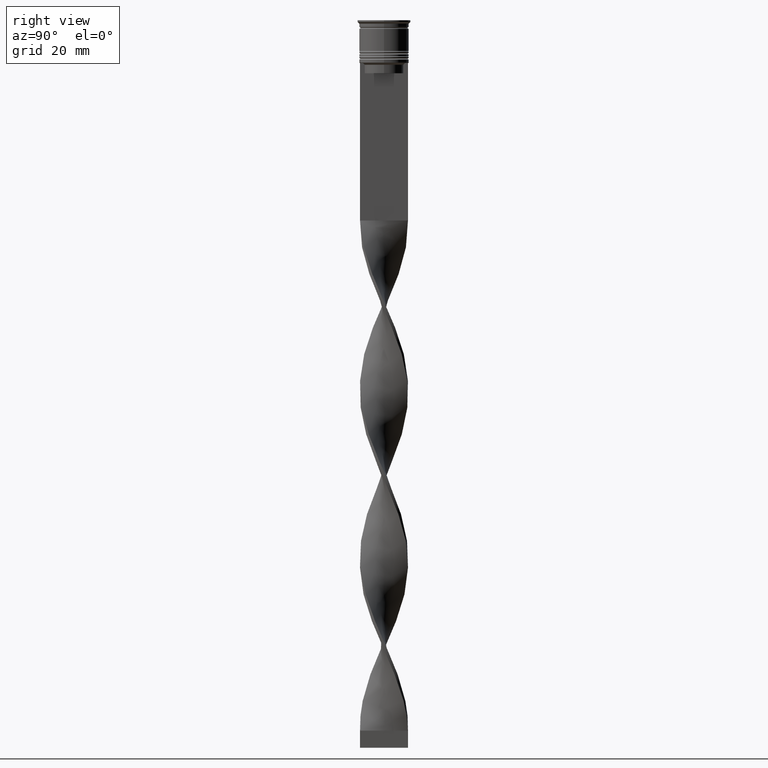
[diagram: clean part render]
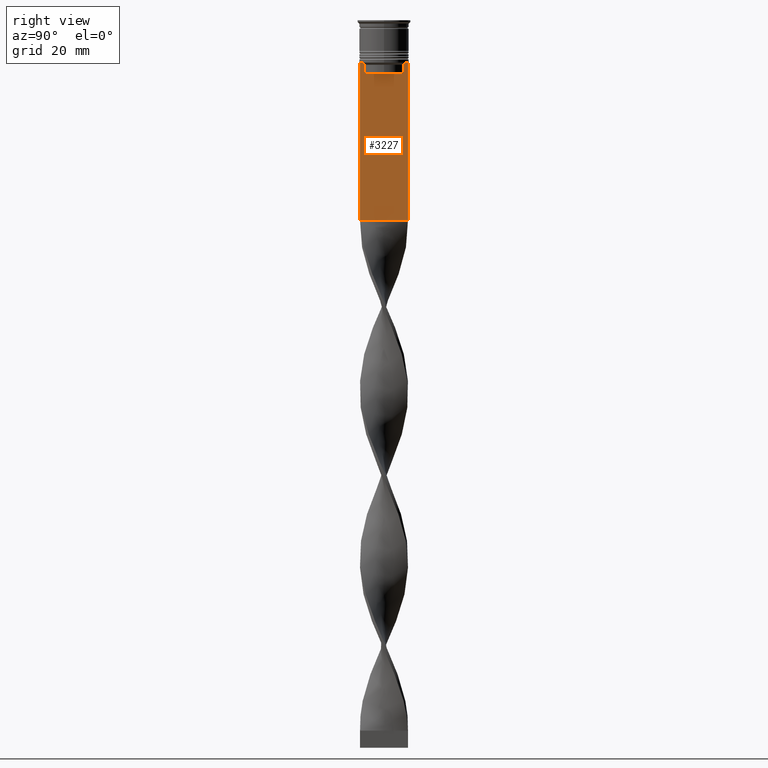
[diagram: same view with one face highlighted and labeled with its STEP entity id]
A machine part, right view. The second image highlights one B-rep face of the part: STEP entity #3227.
In plain terms, the highlighted planar face has unit normal (-1, 0, 0).
Its self-contained STEP definition (entity closure, byte-faithful):
#14 = DIRECTION ( 'NONE',  ( -0.000000000000000000, -0.000000000000000000, 1.000000000000000000 ) ) ;
#47 = CARTESIAN_POINT ( 'NONE',  ( 0.5000000000000000000, 5.627832620112292794, -15.50000000000000000 ) ) ;
#119 = CARTESIAN_POINT ( 'NONE',  ( 0.5000000000000000000, 6.129641098791995368, -12.50000000000000000 ) ) ;
#142 = CARTESIAN_POINT ( 'NONE',  ( 0.5000000000000000000, -5.627832620112292794, -13.00000000000000000 ) ) ;
#204 = CARTESIAN_POINT ( 'NONE',  ( 0.5000000000000000000, 7.000000000000002665, -58.50000000000000000 ) ) ;
#225 = VERTEX_POINT ( 'NONE', #47 ) ;
#311 = VERTEX_POINT ( 'NONE', #142 ) ;
#324 = LINE ( 'NONE', #2915, #474 ) ;
#471 = VECTOR ( 'NONE', #14, 1000.000000000000000 ) ;
#474 = VECTOR ( 'NONE', #2594, 1000.000000000000000 ) ;
#486 = DIRECTION ( 'NONE',  ( 0.000000000000000000, 0.000000000000000000, -1.000000000000000000 ) ) ;
#516 = CARTESIAN_POINT ( 'NONE',  ( 0.5000000000000000000, -5.962396079681185235, -12.66669137279835589 ) ) ;
#618 = DIRECTION ( 'NONE',  ( 0.000000000000000000, 1.000000000000000000, 0.000000000000000000 ) ) ;
#644 = EDGE_CURVE ( 'NONE', #3238, #1004, #2353, .T. ) ;
#673 = VERTEX_POINT ( 'NONE', #1573 ) ;
#721 = ORIENTED_EDGE ( 'NONE', *, *, #1709, .T. ) ;
#731 = DIRECTION ( 'NONE',  ( 0.000000000000000000, 0.000000000000000000, -1.000000000000000000 ) ) ;
#734 = VERTEX_POINT ( 'NONE', #763 ) ;
#739 = B_SPLINE_CURVE_WITH_KNOTS ( 'NONE', 3,
 ( #1361, #2259, #516, #2866 ),
 .UNSPECIFIED., .F., .F.,
 ( 4, 4 ),
 ( 0.02651134470867368836, 0.02721991123504332449 ),
 .UNSPECIFIED. ) ;
#750 = FACE_OUTER_BOUND ( 'NONE', #3145, .T. ) ;
#763 = CARTESIAN_POINT ( 'NONE',  ( 0.5000000000000000000, -6.129641098791995368, -12.50000000000000000 ) ) ;
#830 = ORIENTED_EDGE ( 'NONE', *, *, #2099, .T. ) ;
#835 = CARTESIAN_POINT ( 'NONE',  ( 0.5000000000000000000, 5.627832620112292794, -13.00000000000000000 ) ) ;
#855 = CARTESIAN_POINT ( 'NONE',  ( 0.5000000000000000000, 6.129641098791995368, -12.50000000000000000 ) ) ;
#919 = CARTESIAN_POINT ( 'NONE',  ( 0.5000000000000000000, -6.999999999999997335, -58.50000000000000000 ) ) ;
#938 = EDGE_CURVE ( 'NONE', #673, #1004, #2457, .T. ) ;
#1004 = VERTEX_POINT ( 'NONE', #204 ) ;
#1022 = DIRECTION ( 'NONE',  ( -1.000000000000000000, 0.000000000000000000, 0.000000000000000000 ) ) ;
#1058 = CARTESIAN_POINT ( 'NONE',  ( 0.5000000000000000000, -6.999999999999997335, 1.535668847618198329 ) ) ;
#1098 = VECTOR ( 'NONE', #2921, 1000.000000000000000 ) ;
#1126 = EDGE_CURVE ( 'NONE', #673, #1436, #3270, .T. ) ;
#1171 = EDGE_CURVE ( 'NONE', #311, #734, #739, .T. ) ;
#1297 = CARTESIAN_POINT ( 'NONE',  ( 0.5000000000000000000, 5.627832620112292794, -13.00000000000000000 ) ) ;
#1344 = VERTEX_POINT ( 'NONE', #835 ) ;
#1361 = CARTESIAN_POINT ( 'NONE',  ( 0.5000000000000000000, -5.627832620112292794, -13.00000000000000000 ) ) ;
#1369 = PLANE ( 'NONE',  #2634 ) ;
#1397 = ORIENTED_EDGE ( 'NONE', *, *, #938, .F. ) ;
#1436 = VERTEX_POINT ( 'NONE', #855 ) ;
#1573 = CARTESIAN_POINT ( 'NONE',  ( 0.5000000000000000000, 7.000000000000002665, -12.50000000000000000 ) ) ;
#1593 = VECTOR ( 'NONE', #2898, 1000.000000000000000 ) ;
#1604 = EDGE_CURVE ( 'NONE', #3186, #311, #3220, .T. ) ;
#1636 = DIRECTION ( 'NONE',  ( 0.000000000000000000, 0.000000000000000000, 1.000000000000000000 ) ) ;
#1709 = EDGE_CURVE ( 'NONE', #1344, #225, #2952, .T. ) ;
#1857 = CARTESIAN_POINT ( 'NONE',  ( 0.5000000000000000000, 5.962396146966409738, -12.66669130573587054 ) ) ;
#1976 = CARTESIAN_POINT ( 'NONE',  ( 0.5000000000000000000, -5.627832620112292794, -15.50000000000000000 ) ) ;
#2072 = VECTOR ( 'NONE', #618, 1000.000000000000000 ) ;
#2099 = EDGE_CURVE ( 'NONE', #3757, #3238, #2220, .T. ) ;
#2176 = ORIENTED_EDGE ( 'NONE', *, *, #1171, .T. ) ;
#2220 = LINE ( 'NONE', #3125, #3734 ) ;
#2237 = VECTOR ( 'NONE', #731, 1000.000000000000000 ) ;
#2253 = EDGE_CURVE ( 'NONE', #225, #3186, #3488, .T. ) ;
#2259 = CARTESIAN_POINT ( 'NONE',  ( 0.5000000000000000000, -5.795128760752289665, -12.83336023406855197 ) ) ;
#2303 = DIRECTION ( 'NONE',  ( 0.000000000000000000, -1.000000000000000000, 0.000000000000000000 ) ) ;
#2353 = LINE ( 'NONE', #919, #2072 ) ;
#2372 = VECTOR ( 'NONE', #2303, 1000.000000000000000 ) ;
#2457 = LINE ( 'NONE', #3421, #2237 ) ;
#2477 = EDGE_CURVE ( 'NONE', #734, #3757, #324, .T. ) ;
#2479 = ORIENTED_EDGE ( 'NONE', *, *, #3562, .T. ) ;
#2527 = CARTESIAN_POINT ( 'NONE',  ( 0.5000000000000000000, -6.999999999999997335, -58.50000000000000000 ) ) ;
#2594 = DIRECTION ( 'NONE',  ( 0.000000000000000000, -1.000000000000000000, 0.000000000000000000 ) ) ;
#2634 = AXIS2_PLACEMENT_3D ( 'NONE', #1058, #1022, #1636 ) ;
#2681 = ORIENTED_EDGE ( 'NONE', *, *, #1604, .T. ) ;
#2786 = ORIENTED_EDGE ( 'NONE', *, *, #2477, .T. ) ;
#2866 = CARTESIAN_POINT ( 'NONE',  ( 0.5000000000000000000, -6.129641098791995368, -12.50000000000000000 ) ) ;
#2898 = DIRECTION ( 'NONE',  ( 0.000000000000000000, 0.000000000000000000, -1.000000000000000000 ) ) ;
#2915 = CARTESIAN_POINT ( 'NONE',  ( 0.5000000000000000000, -6.999999999999997335, -12.50000000000000000 ) ) ;
#2921 = DIRECTION ( 'NONE',  ( 0.000000000000000000, -1.000000000000000000, 0.000000000000000000 ) ) ;
#2952 = LINE ( 'NONE', #3805, #1593 ) ;
#2966 = B_SPLINE_CURVE_WITH_KNOTS ( 'NONE', 3,
 ( #119, #1857, #3022, #1297 ),
 .UNSPECIFIED., .F., .F.,
 ( 4, 4 ),
 ( 0.01045365750109871796, 0.01116204421161398619 ),
 .UNSPECIFIED. ) ;
#3022 = CARTESIAN_POINT ( 'NONE',  ( 0.5000000000000000000, 5.795128834036803234, -12.83336016107156574 ) ) ;
#3089 = ORIENTED_EDGE ( 'NONE', *, *, #2253, .T. ) ;
#3125 = CARTESIAN_POINT ( 'NONE',  ( 0.5000000000000000000, -6.999999999999997335, 1.535668847618198329 ) ) ;
#3142 = CARTESIAN_POINT ( 'NONE',  ( 0.5000000000000000000, -6.999999999999997335, -12.50000000000000000 ) ) ;
#3145 = EDGE_LOOP ( 'NONE', ( #3773, #2479, #721, #3089, #2681, #2176, #2786, #830, #3409, #1397 ) ) ;
#3186 = VERTEX_POINT ( 'NONE', #1976 ) ;
#3220 = LINE ( 'NONE', #3750, #471 ) ;
#3227 = ADVANCED_FACE ( 'NONE', ( #750 ), #1369, .F. ) ;
#3238 = VERTEX_POINT ( 'NONE', #2527 ) ;
#3270 = LINE ( 'NONE', #3528, #2372 ) ;
#3409 = ORIENTED_EDGE ( 'NONE', *, *, #644, .T. ) ;
#3421 = CARTESIAN_POINT ( 'NONE',  ( 0.5000000000000000000, 7.000000000000002665, 1.535668847618198329 ) ) ;
#3488 = LINE ( 'NONE', #3525, #1098 ) ;
#3525 = CARTESIAN_POINT ( 'NONE',  ( 0.5000000000000000000, 5.649999999999998579, -15.50000000000000000 ) ) ;
#3528 = CARTESIAN_POINT ( 'NONE',  ( 0.5000000000000000000, -6.999999999999997335, -12.50000000000000000 ) ) ;
#3562 = EDGE_CURVE ( 'NONE', #1436, #1344, #2966, .T. ) ;
#3734 = VECTOR ( 'NONE', #486, 1000.000000000000000 ) ;
#3750 = CARTESIAN_POINT ( 'NONE',  ( 0.5000000000000000000, -5.627832620112292794, 0.000000000000000000 ) ) ;
#3757 = VERTEX_POINT ( 'NONE', #3142 ) ;
#3773 = ORIENTED_EDGE ( 'NONE', *, *, #1126, .T. ) ;
#3805 = CARTESIAN_POINT ( 'NONE',  ( 0.5000000000000000000, 5.627832620112292794, 0.000000000000000000 ) ) ;